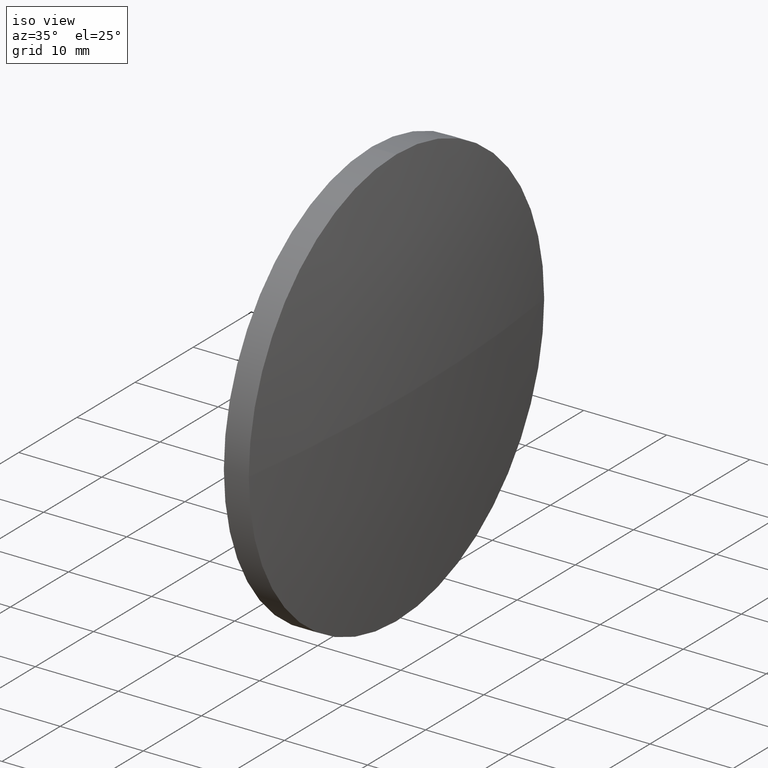
[diagram: clean part render]
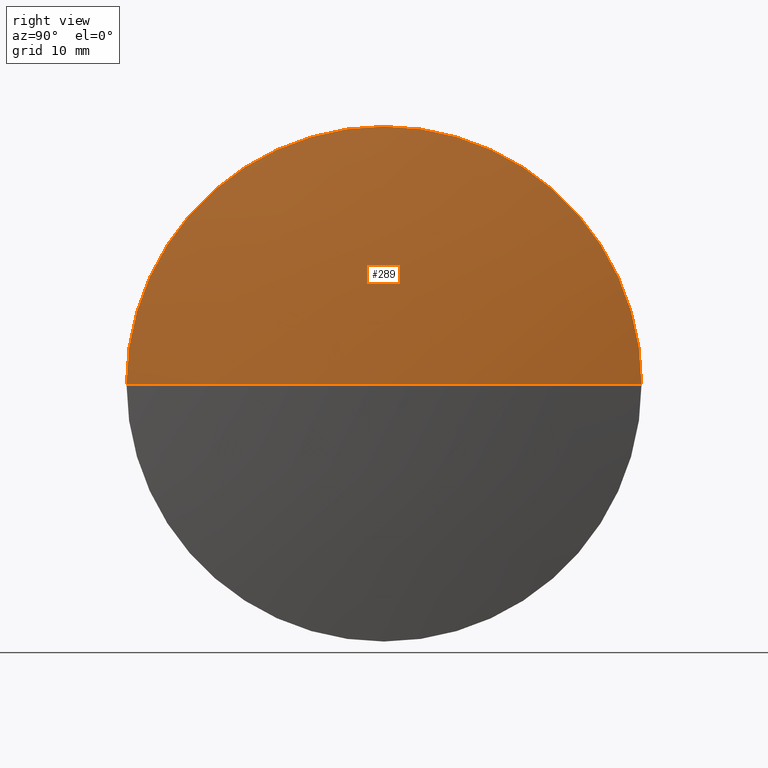
[diagram: tour spotlight — one face highlighted and labeled with its STEP entity id]
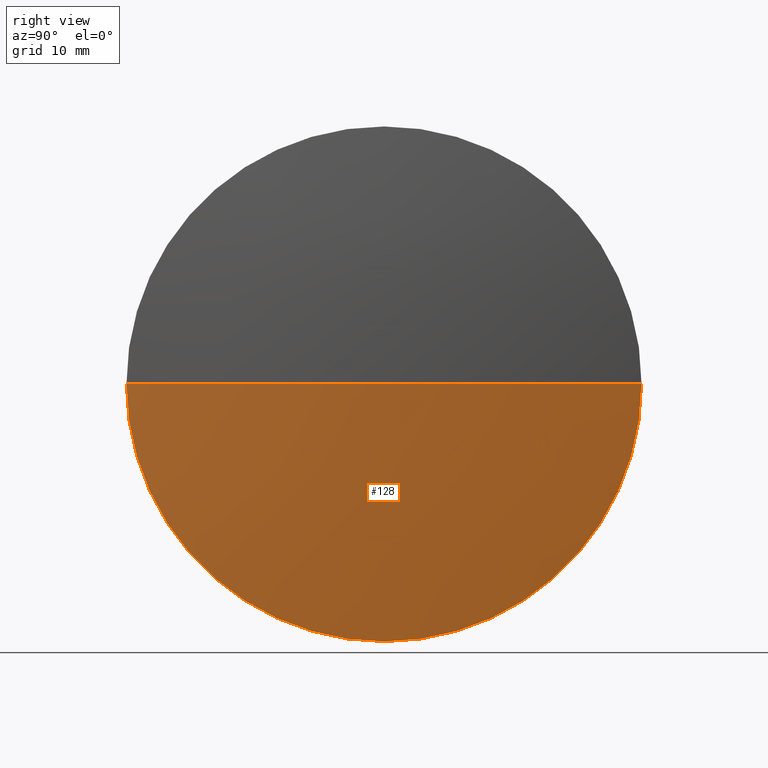
[diagram: tour spotlight — one face highlighted and labeled with its STEP entity id]
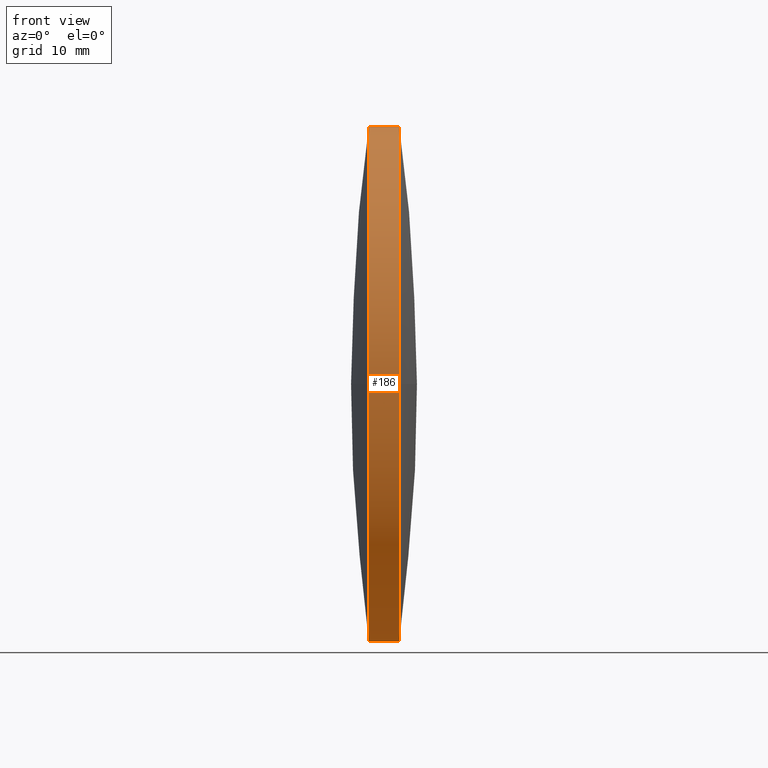
[diagram: tour spotlight — one face highlighted and labeled with its STEP entity id]
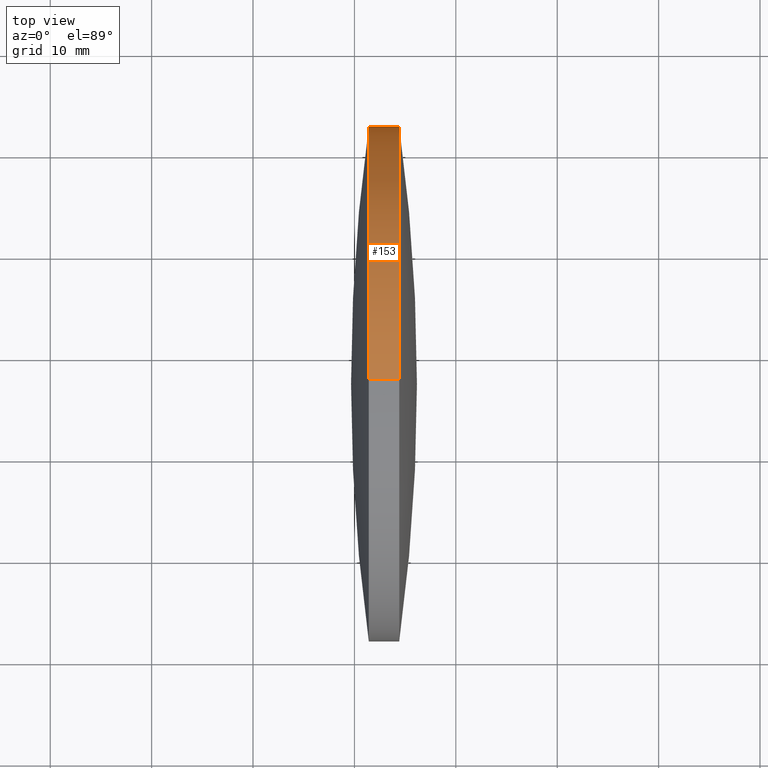
[diagram: tour spotlight — one face highlighted and labeled with its STEP entity id]
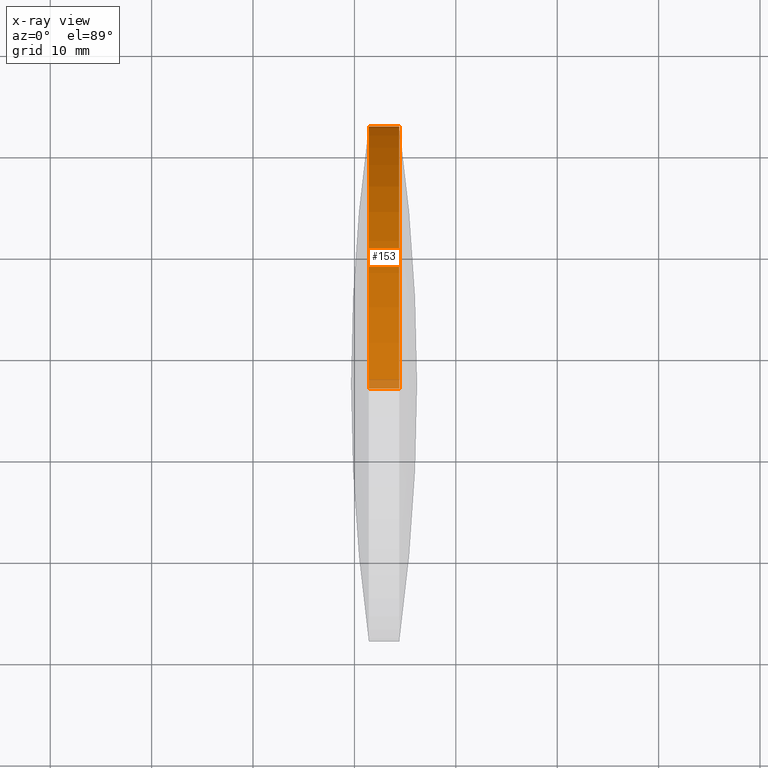
[diagram: x-ray of the same camera — body ghosted, this tour face saturated]
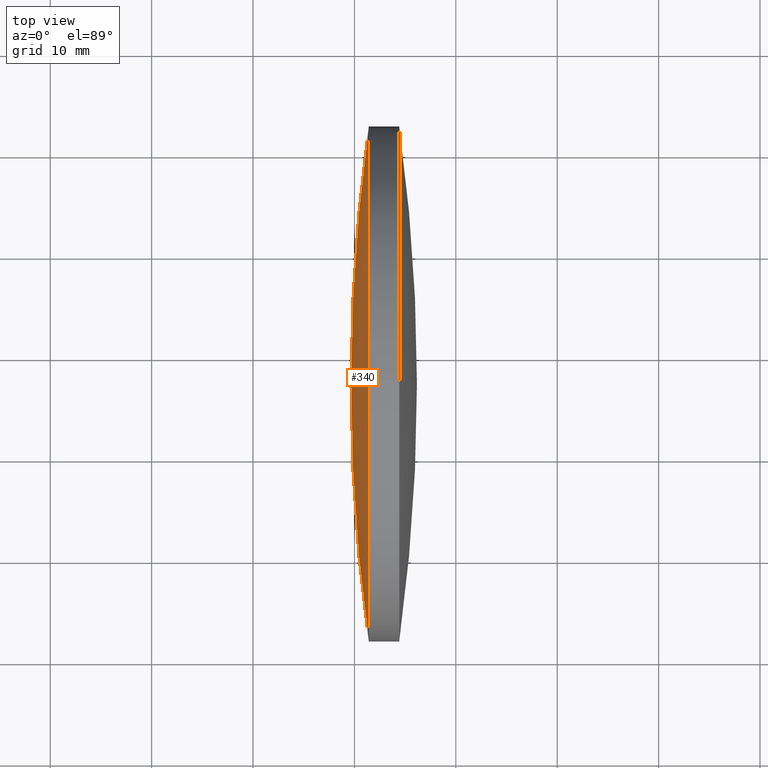
[diagram: tour spotlight — one face highlighted and labeled with its STEP entity id]
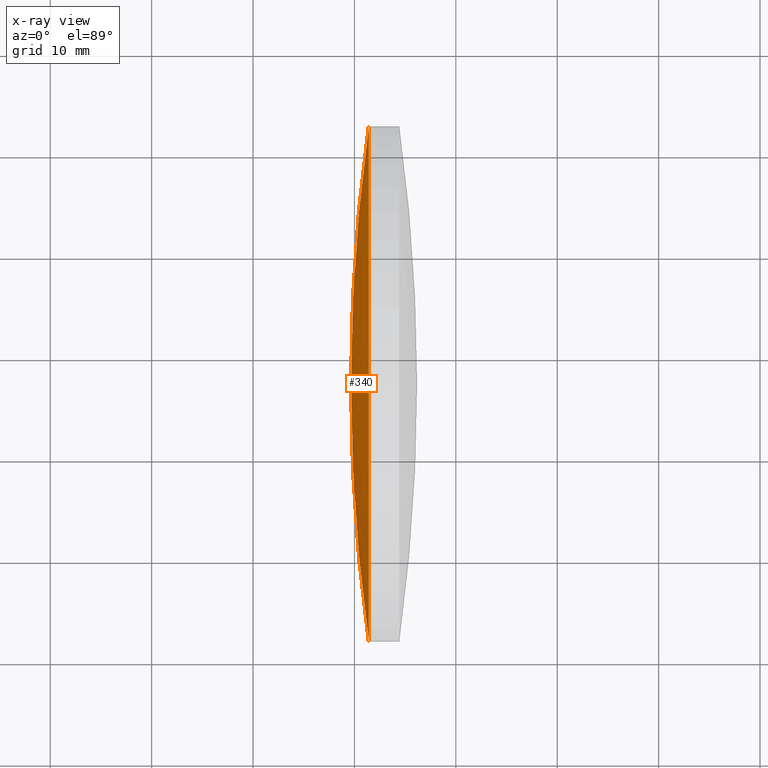
[diagram: x-ray of the same camera — body ghosted, this tour face saturated]
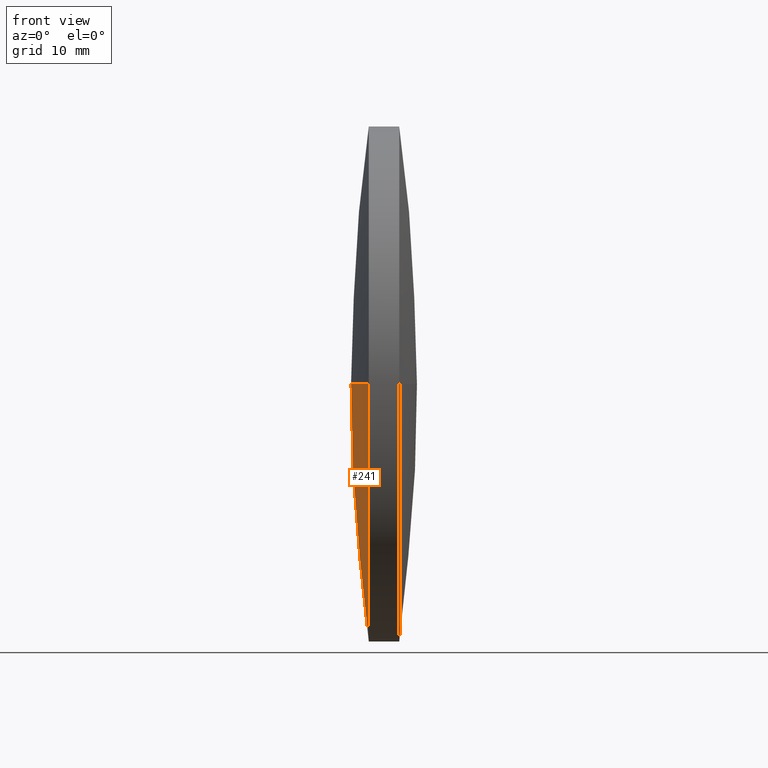
[diagram: tour spotlight — one face highlighted and labeled with its STEP entity id]
A machine part: a face-by-face anatomy tour. The part has 6 B-rep faces; the first image is the clean iso view, then the 6 largest visible faces are spotlighted one at a time (largest first), each with its STEP entity span.

Face 1 — right view, entity #289. In plain terms, the highlighted spherical surface has radius 185.208 mm.
Definition (entity closure, byte-faithful):
#7 = VERTEX_POINT ( 'NONE', #158 ) ;
#16 = EDGE_LOOP ( 'NONE', ( #266, #287, #306, #343 ) ) ;
#18 = DIRECTION ( 'NONE',  ( -1.000000000000000000, -0.0000000000000000000, -0.0000000000000000000 ) ) ;
#25 = VERTEX_POINT ( 'NONE', #268 ) ;
#27 = CARTESIAN_POINT ( 'NONE',  ( -9.041392636991657700, 97.23222604636865200, 0.0000000000000000000 ) ) ;
#28 = AXIS2_PLACEMENT_3D ( 'NONE', #27, #323, #114 ) ;
#29 = DIRECTION ( 'NONE',  ( 1.000000000000000000, 0.0000000000000000000, 0.0000000000000000000 ) ) ;
#43 = EDGE_CURVE ( 'NONE', #7, #174, #208, .T. ) ;
#48 = DIRECTION ( 'NONE',  ( 0.0000000000000000000, 0.0000000000000000000, 1.000000000000000000 ) ) ;
#55 = DIRECTION ( 'NONE',  ( -0.0000000000000000000, 0.0000000000000000000, -1.000000000000000000 ) ) ;
#56 = AXIS2_PLACEMENT_3D ( 'NONE', #242, #18, #48 ) ;
#59 = CARTESIAN_POINT ( 'NONE',  ( 174.4163664064679400, 97.23222604636956100, 0.0000000000000000000 ) ) ;
#84 = DIRECTION ( 'NONE',  ( 0.0000000000000000000, 0.0000000000000000000, 1.000000000000000000 ) ) ;
#114 = DIRECTION ( 'NONE',  ( 0.0000000000000000000, 1.000000000000000000, 1.224646799147353200E-016 ) ) ;
#132 = DIRECTION ( 'NONE',  ( -1.000000000000000000, -0.0000000000000000000, -0.0000000000000000000 ) ) ;
#149 = VERTEX_POINT ( 'NONE', #296 ) ;
#158 = CARTESIAN_POINT ( 'NONE',  ( 174.4163664064679400, 97.23222604636956100, 25.39999999999999100 ) ) ;
#161 = EDGE_CURVE ( 'NONE', #149, #25, #246, .T. ) ;
#174 = VERTEX_POINT ( 'NONE', #249 ) ;
#192 = AXIS2_PLACEMENT_3D ( 'NONE', #196, #194, #29 ) ;
#194 = DIRECTION ( 'NONE',  ( -0.0000000000000000000, 0.0000000000000000000, 1.000000000000000000 ) ) ;
#196 = CARTESIAN_POINT ( 'NONE',  ( -9.041392636991657700, 97.23222604636865200, 0.0000000000000000000 ) ) ;
#197 = CARTESIAN_POINT ( 'NONE',  ( -9.041392636991657700, 97.23222604636865200, 0.0000000000000000000 ) ) ;
#199 = EDGE_CURVE ( 'NONE', #149, #174, #251, .T. ) ;
#205 = AXIS2_PLACEMENT_3D ( 'NONE', #197, #55, #253 ) ;
#208 = CIRCLE ( 'NONE', #56, 25.39999999999999100 ) ;
#225 = EDGE_CURVE ( 'NONE', #25, #7, #256, .T. ) ;
#242 = CARTESIAN_POINT ( 'NONE',  ( 174.4163664064679400, 97.23222604636956100, 0.0000000000000000000 ) ) ;
#246 = CIRCLE ( 'NONE', #28, 185.2077464720309200 ) ;
#249 = CARTESIAN_POINT ( 'NONE',  ( 174.4163664064679400, 122.6322260463690800, 0.0000000000000000000 ) ) ;
#251 = CIRCLE ( 'NONE', #192, 185.2077464720309200 ) ;
#253 = DIRECTION ( 'NONE',  ( 0.0000000000000000000, 1.000000000000000000, 0.0000000000000000000 ) ) ;
#256 = CIRCLE ( 'NONE', #332, 25.39999999999999100 ) ;
#266 = ORIENTED_EDGE ( 'NONE', *, *, #161, .F. ) ;
#268 = CARTESIAN_POINT ( 'NONE',  ( 174.4163664064679400, 71.83222604636912900, -3.110602869834218900E-015 ) ) ;
#275 = SPHERICAL_SURFACE ( 'NONE', #205, 185.2077464720309200 ) ;
#287 = ORIENTED_EDGE ( 'NONE', *, *, #199, .T. ) ;
#289 = ADVANCED_FACE ( 'NONE', ( #337 ), #275, .T. ) ;
#296 = CARTESIAN_POINT ( 'NONE',  ( 176.1663538350392500, 97.23222604636866600, 0.0000000000000000000 ) ) ;
#306 = ORIENTED_EDGE ( 'NONE', *, *, #43, .F. ) ;
#323 = DIRECTION ( 'NONE',  ( 0.0000000000000000000, 1.224646799147353200E-016, -1.000000000000000000 ) ) ;
#332 = AXIS2_PLACEMENT_3D ( 'NONE', #59, #132, #84 ) ;
#337 = FACE_OUTER_BOUND ( 'NONE', #16, .T. ) ;
#343 = ORIENTED_EDGE ( 'NONE', *, *, #225, .F. ) ;

Face 2 — right view, entity #128. In plain terms, the highlighted spherical surface has radius 185.208 mm.
Definition (entity closure, byte-faithful):
#17 = EDGE_CURVE ( 'NONE', #218, #25, #307, .T. ) ;
#19 = FACE_OUTER_BOUND ( 'NONE', #284, .T. ) ;
#25 = VERTEX_POINT ( 'NONE', #268 ) ;
#27 = CARTESIAN_POINT ( 'NONE',  ( -9.041392636991657700, 97.23222604636865200, 0.0000000000000000000 ) ) ;
#28 = AXIS2_PLACEMENT_3D ( 'NONE', #27, #323, #114 ) ;
#29 = DIRECTION ( 'NONE',  ( 1.000000000000000000, 0.0000000000000000000, 0.0000000000000000000 ) ) ;
#42 = AXIS2_PLACEMENT_3D ( 'NONE', #217, #314, #319 ) ;
#58 = EDGE_CURVE ( 'NONE', #174, #218, #190, .T. ) ;
#71 = ORIENTED_EDGE ( 'NONE', *, *, #17, .F. ) ;
#105 = CARTESIAN_POINT ( 'NONE',  ( 174.4163664064679400, 97.23222604636956100, 0.0000000000000000000 ) ) ;
#110 = CARTESIAN_POINT ( 'NONE',  ( 174.4163664064679400, 97.23222604636956100, -25.39999999999999100 ) ) ;
#111 = DIRECTION ( 'NONE',  ( -0.0000000000000000000, 0.0000000000000000000, -1.000000000000000000 ) ) ;
#114 = DIRECTION ( 'NONE',  ( 0.0000000000000000000, 1.000000000000000000, 1.224646799147353200E-016 ) ) ;
#128 = ADVANCED_FACE ( 'NONE', ( #19 ), #342, .T. ) ;
#137 = AXIS2_PLACEMENT_3D ( 'NONE', #105, #345, #220 ) ;
#138 = DIRECTION ( 'NONE',  ( 0.0000000000000000000, 1.000000000000000000, 0.0000000000000000000 ) ) ;
#149 = VERTEX_POINT ( 'NONE', #296 ) ;
#161 = EDGE_CURVE ( 'NONE', #149, #25, #246, .T. ) ;
#174 = VERTEX_POINT ( 'NONE', #249 ) ;
#179 = ORIENTED_EDGE ( 'NONE', *, *, #199, .F. ) ;
#183 = AXIS2_PLACEMENT_3D ( 'NONE', #322, #111, #138 ) ;
#190 = CIRCLE ( 'NONE', #137, 25.39999999999999100 ) ;
#192 = AXIS2_PLACEMENT_3D ( 'NONE', #196, #194, #29 ) ;
#194 = DIRECTION ( 'NONE',  ( -0.0000000000000000000, 0.0000000000000000000, 1.000000000000000000 ) ) ;
#196 = CARTESIAN_POINT ( 'NONE',  ( -9.041392636991657700, 97.23222604636865200, 0.0000000000000000000 ) ) ;
#199 = EDGE_CURVE ( 'NONE', #149, #174, #251, .T. ) ;
#200 = ORIENTED_EDGE ( 'NONE', *, *, #58, .F. ) ;
#217 = CARTESIAN_POINT ( 'NONE',  ( 174.4163664064679400, 97.23222604636956100, 0.0000000000000000000 ) ) ;
#218 = VERTEX_POINT ( 'NONE', #110 ) ;
#220 = DIRECTION ( 'NONE',  ( 0.0000000000000000000, 0.0000000000000000000, 1.000000000000000000 ) ) ;
#229 = ORIENTED_EDGE ( 'NONE', *, *, #161, .T. ) ;
#246 = CIRCLE ( 'NONE', #28, 185.2077464720309200 ) ;
#249 = CARTESIAN_POINT ( 'NONE',  ( 174.4163664064679400, 122.6322260463690800, 0.0000000000000000000 ) ) ;
#251 = CIRCLE ( 'NONE', #192, 185.2077464720309200 ) ;
#268 = CARTESIAN_POINT ( 'NONE',  ( 174.4163664064679400, 71.83222604636912900, -3.110602869834218900E-015 ) ) ;
#284 = EDGE_LOOP ( 'NONE', ( #179, #229, #71, #200 ) ) ;
#296 = CARTESIAN_POINT ( 'NONE',  ( 176.1663538350392500, 97.23222604636866600, 0.0000000000000000000 ) ) ;
#307 = CIRCLE ( 'NONE', #42, 25.39999999999999100 ) ;
#314 = DIRECTION ( 'NONE',  ( -1.000000000000000000, -0.0000000000000000000, -0.0000000000000000000 ) ) ;
#319 = DIRECTION ( 'NONE',  ( 0.0000000000000000000, 0.0000000000000000000, 1.000000000000000000 ) ) ;
#322 = CARTESIAN_POINT ( 'NONE',  ( -9.041392636991657700, 97.23222604636865200, 0.0000000000000000000 ) ) ;
#323 = DIRECTION ( 'NONE',  ( 0.0000000000000000000, 1.224646799147353200E-016, -1.000000000000000000 ) ) ;
#342 = SPHERICAL_SURFACE ( 'NONE', #183, 185.2077464720309200 ) ;
#345 = DIRECTION ( 'NONE',  ( -1.000000000000000000, -0.0000000000000000000, -0.0000000000000000000 ) ) ;

Face 3 — front view, entity #186. In plain terms, the highlighted cylindrical surface (partial cylindrical patch) has radius 25.4 mm, axis along (-1, -0, -0).
Definition (entity closure, byte-faithful):
#2 = ORIENTED_EDGE ( 'NONE', *, *, #96, .F. ) ;
#6 = CARTESIAN_POINT ( 'NONE',  ( 171.4164086921822200, 97.23222604636956100, 25.39999999999999100 ) ) ;
#7 = VERTEX_POINT ( 'NONE', #158 ) ;
#17 = EDGE_CURVE ( 'NONE', #218, #25, #307, .T. ) ;
#21 = CARTESIAN_POINT ( 'NONE',  ( 171.4164086921822200, 97.23222604636956100, 0.0000000000000000000 ) ) ;
#23 = EDGE_CURVE ( 'NONE', #218, #281, #97, .T. ) ;
#24 = CYLINDRICAL_SURFACE ( 'NONE', #310, 25.39999999999999100 ) ;
#25 = VERTEX_POINT ( 'NONE', #268 ) ;
#30 = CARTESIAN_POINT ( 'NONE',  ( 171.4164086921822200, 71.83222604636944200, -3.110602869834257900E-015 ) ) ;
#31 = FACE_OUTER_BOUND ( 'NONE', #37, .T. ) ;
#37 = EDGE_LOOP ( 'NONE', ( #308, #66, #176, #52, #2, #191 ) ) ;
#42 = AXIS2_PLACEMENT_3D ( 'NONE', #217, #314, #319 ) ;
#51 = DIRECTION ( 'NONE',  ( -1.000000000000000000, -0.0000000000000000000, -0.0000000000000000000 ) ) ;
#52 = ORIENTED_EDGE ( 'NONE', *, *, #146, .T. ) ;
#59 = CARTESIAN_POINT ( 'NONE',  ( 174.4163664064679400, 97.23222604636956100, 0.0000000000000000000 ) ) ;
#64 = DIRECTION ( 'NONE',  ( -1.000000000000000000, -0.0000000000000000000, -0.0000000000000000000 ) ) ;
#66 = ORIENTED_EDGE ( 'NONE', *, *, #17, .T. ) ;
#68 = AXIS2_PLACEMENT_3D ( 'NONE', #21, #130, #78 ) ;
#73 = EDGE_CURVE ( 'NONE', #281, #182, #107, .T. ) ;
#78 = DIRECTION ( 'NONE',  ( 0.0000000000000000000, 0.0000000000000000000, 1.000000000000000000 ) ) ;
#84 = DIRECTION ( 'NONE',  ( 0.0000000000000000000, 0.0000000000000000000, 1.000000000000000000 ) ) ;
#86 = DIRECTION ( 'NONE',  ( 0.0000000000000000000, 0.0000000000000000000, 1.000000000000000000 ) ) ;
#96 = EDGE_CURVE ( 'NONE', #182, #151, #327, .T. ) ;
#97 = LINE ( 'NONE', #108, #259 ) ;
#101 = LINE ( 'NONE', #244, #312 ) ;
#107 = CIRCLE ( 'NONE', #68, 25.39999999999999100 ) ;
#108 = CARTESIAN_POINT ( 'NONE',  ( 165.7441079421506900, 97.23222604636956100, -25.39999999999999100 ) ) ;
#110 = CARTESIAN_POINT ( 'NONE',  ( 174.4163664064679400, 97.23222604636956100, -25.39999999999999100 ) ) ;
#130 = DIRECTION ( 'NONE',  ( -1.000000000000000000, -0.0000000000000000000, -0.0000000000000000000 ) ) ;
#132 = DIRECTION ( 'NONE',  ( -1.000000000000000000, -0.0000000000000000000, -0.0000000000000000000 ) ) ;
#146 = EDGE_CURVE ( 'NONE', #7, #151, #101, .T. ) ;
#151 = VERTEX_POINT ( 'NONE', #6 ) ;
#158 = CARTESIAN_POINT ( 'NONE',  ( 174.4163664064679400, 97.23222604636956100, 25.39999999999999100 ) ) ;
#166 = CARTESIAN_POINT ( 'NONE',  ( 171.4164086921822200, 97.23222604636956100, -25.39999999999999100 ) ) ;
#170 = DIRECTION ( 'NONE',  ( -1.000000000000000000, -0.0000000000000000000, -0.0000000000000000000 ) ) ;
#176 = ORIENTED_EDGE ( 'NONE', *, *, #225, .T. ) ;
#182 = VERTEX_POINT ( 'NONE', #30 ) ;
#186 = ADVANCED_FACE ( 'NONE', ( #31 ), #24, .T. ) ;
#191 = ORIENTED_EDGE ( 'NONE', *, *, #73, .F. ) ;
#212 = AXIS2_PLACEMENT_3D ( 'NONE', #224, #170, #86 ) ;
#217 = CARTESIAN_POINT ( 'NONE',  ( 174.4163664064679400, 97.23222604636956100, 0.0000000000000000000 ) ) ;
#218 = VERTEX_POINT ( 'NONE', #110 ) ;
#224 = CARTESIAN_POINT ( 'NONE',  ( 171.4164086921822200, 97.23222604636956100, 0.0000000000000000000 ) ) ;
#225 = EDGE_CURVE ( 'NONE', #25, #7, #256, .T. ) ;
#227 = DIRECTION ( 'NONE',  ( 0.0000000000000000000, 0.0000000000000000000, 1.000000000000000000 ) ) ;
#244 = CARTESIAN_POINT ( 'NONE',  ( 165.7441079421506900, 97.23222604636956100, 25.39999999999999100 ) ) ;
#256 = CIRCLE ( 'NONE', #332, 25.39999999999999100 ) ;
#259 = VECTOR ( 'NONE', #51, 1000.000000000000000 ) ;
#268 = CARTESIAN_POINT ( 'NONE',  ( 174.4163664064679400, 71.83222604636912900, -3.110602869834218900E-015 ) ) ;
#271 = CARTESIAN_POINT ( 'NONE',  ( 165.7441079421506900, 97.23222604636956100, 0.0000000000000000000 ) ) ;
#272 = DIRECTION ( 'NONE',  ( -1.000000000000000000, -0.0000000000000000000, -0.0000000000000000000 ) ) ;
#281 = VERTEX_POINT ( 'NONE', #166 ) ;
#307 = CIRCLE ( 'NONE', #42, 25.39999999999999100 ) ;
#308 = ORIENTED_EDGE ( 'NONE', *, *, #23, .F. ) ;
#310 = AXIS2_PLACEMENT_3D ( 'NONE', #271, #272, #227 ) ;
#312 = VECTOR ( 'NONE', #64, 1000.000000000000000 ) ;
#314 = DIRECTION ( 'NONE',  ( -1.000000000000000000, -0.0000000000000000000, -0.0000000000000000000 ) ) ;
#319 = DIRECTION ( 'NONE',  ( 0.0000000000000000000, 0.0000000000000000000, 1.000000000000000000 ) ) ;
#327 = CIRCLE ( 'NONE', #212, 25.39999999999999100 ) ;
#332 = AXIS2_PLACEMENT_3D ( 'NONE', #59, #132, #84 ) ;

Face 4 — top view, entity #153. An x-ray twin of the same camera follows (body ghosted, this face saturated) — the face is partly hidden behind the body. In plain terms, the highlighted cylindrical surface (partial cylindrical patch) has radius 25.4 mm, axis along (-1, -0, -0).
Definition (entity closure, byte-faithful):
#6 = CARTESIAN_POINT ( 'NONE',  ( 171.4164086921822200, 97.23222604636956100, 25.39999999999999100 ) ) ;
#7 = VERTEX_POINT ( 'NONE', #158 ) ;
#18 = DIRECTION ( 'NONE',  ( -1.000000000000000000, -0.0000000000000000000, -0.0000000000000000000 ) ) ;
#20 = VERTEX_POINT ( 'NONE', #54 ) ;
#23 = EDGE_CURVE ( 'NONE', #218, #281, #97, .T. ) ;
#35 = AXIS2_PLACEMENT_3D ( 'NONE', #317, #254, #324 ) ;
#43 = EDGE_CURVE ( 'NONE', #7, #174, #208, .T. ) ;
#47 = ORIENTED_EDGE ( 'NONE', *, *, #69, .F. ) ;
#48 = DIRECTION ( 'NONE',  ( 0.0000000000000000000, 0.0000000000000000000, 1.000000000000000000 ) ) ;
#49 = CARTESIAN_POINT ( 'NONE',  ( 171.4164086921822200, 97.23222604636956100, 0.0000000000000000000 ) ) ;
#51 = DIRECTION ( 'NONE',  ( -1.000000000000000000, -0.0000000000000000000, -0.0000000000000000000 ) ) ;
#54 = CARTESIAN_POINT ( 'NONE',  ( 171.4164086921822200, 122.6322260463694100, 0.0000000000000000000 ) ) ;
#56 = AXIS2_PLACEMENT_3D ( 'NONE', #242, #18, #48 ) ;
#58 = EDGE_CURVE ( 'NONE', #174, #218, #190, .T. ) ;
#64 = DIRECTION ( 'NONE',  ( -1.000000000000000000, -0.0000000000000000000, -0.0000000000000000000 ) ) ;
#69 = EDGE_CURVE ( 'NONE', #151, #20, #102, .T. ) ;
#74 = CARTESIAN_POINT ( 'NONE',  ( 171.4164086921822200, 97.23222604636956100, 0.0000000000000000000 ) ) ;
#77 = DIRECTION ( 'NONE',  ( -1.000000000000000000, -0.0000000000000000000, -0.0000000000000000000 ) ) ;
#79 = EDGE_CURVE ( 'NONE', #20, #281, #118, .T. ) ;
#97 = LINE ( 'NONE', #108, #259 ) ;
#98 = ORIENTED_EDGE ( 'NONE', *, *, #43, .T. ) ;
#101 = LINE ( 'NONE', #244, #312 ) ;
#102 = CIRCLE ( 'NONE', #240, 25.39999999999999100 ) ;
#104 = DIRECTION ( 'NONE',  ( -1.000000000000000000, -0.0000000000000000000, -0.0000000000000000000 ) ) ;
#105 = CARTESIAN_POINT ( 'NONE',  ( 174.4163664064679400, 97.23222604636956100, 0.0000000000000000000 ) ) ;
#108 = CARTESIAN_POINT ( 'NONE',  ( 165.7441079421506900, 97.23222604636956100, -25.39999999999999100 ) ) ;
#110 = CARTESIAN_POINT ( 'NONE',  ( 174.4163664064679400, 97.23222604636956100, -25.39999999999999100 ) ) ;
#118 = CIRCLE ( 'NONE', #125, 25.39999999999999100 ) ;
#120 = ORIENTED_EDGE ( 'NONE', *, *, #146, .F. ) ;
#125 = AXIS2_PLACEMENT_3D ( 'NONE', #49, #77, #265 ) ;
#137 = AXIS2_PLACEMENT_3D ( 'NONE', #105, #345, #220 ) ;
#146 = EDGE_CURVE ( 'NONE', #7, #151, #101, .T. ) ;
#151 = VERTEX_POINT ( 'NONE', #6 ) ;
#153 = ADVANCED_FACE ( 'NONE', ( #318 ), #290, .T. ) ;
#158 = CARTESIAN_POINT ( 'NONE',  ( 174.4163664064679400, 97.23222604636956100, 25.39999999999999100 ) ) ;
#166 = CARTESIAN_POINT ( 'NONE',  ( 171.4164086921822200, 97.23222604636956100, -25.39999999999999100 ) ) ;
#168 = EDGE_LOOP ( 'NONE', ( #298, #195, #328, #47, #120, #98 ) ) ;
#174 = VERTEX_POINT ( 'NONE', #249 ) ;
#189 = DIRECTION ( 'NONE',  ( 0.0000000000000000000, 0.0000000000000000000, 1.000000000000000000 ) ) ;
#190 = CIRCLE ( 'NONE', #137, 25.39999999999999100 ) ;
#195 = ORIENTED_EDGE ( 'NONE', *, *, #23, .T. ) ;
#208 = CIRCLE ( 'NONE', #56, 25.39999999999999100 ) ;
#218 = VERTEX_POINT ( 'NONE', #110 ) ;
#220 = DIRECTION ( 'NONE',  ( 0.0000000000000000000, 0.0000000000000000000, 1.000000000000000000 ) ) ;
#240 = AXIS2_PLACEMENT_3D ( 'NONE', #74, #104, #189 ) ;
#242 = CARTESIAN_POINT ( 'NONE',  ( 174.4163664064679400, 97.23222604636956100, 0.0000000000000000000 ) ) ;
#244 = CARTESIAN_POINT ( 'NONE',  ( 165.7441079421506900, 97.23222604636956100, 25.39999999999999100 ) ) ;
#249 = CARTESIAN_POINT ( 'NONE',  ( 174.4163664064679400, 122.6322260463690800, 0.0000000000000000000 ) ) ;
#254 = DIRECTION ( 'NONE',  ( -1.000000000000000000, -0.0000000000000000000, -0.0000000000000000000 ) ) ;
#259 = VECTOR ( 'NONE', #51, 1000.000000000000000 ) ;
#265 = DIRECTION ( 'NONE',  ( 0.0000000000000000000, 0.0000000000000000000, 1.000000000000000000 ) ) ;
#281 = VERTEX_POINT ( 'NONE', #166 ) ;
#290 = CYLINDRICAL_SURFACE ( 'NONE', #35, 25.39999999999999100 ) ;
#298 = ORIENTED_EDGE ( 'NONE', *, *, #58, .T. ) ;
#312 = VECTOR ( 'NONE', #64, 1000.000000000000000 ) ;
#317 = CARTESIAN_POINT ( 'NONE',  ( 165.7441079421506900, 97.23222604636956100, 0.0000000000000000000 ) ) ;
#318 = FACE_OUTER_BOUND ( 'NONE', #168, .T. ) ;
#324 = DIRECTION ( 'NONE',  ( 0.0000000000000000000, 0.0000000000000000000, 1.000000000000000000 ) ) ;
#328 = ORIENTED_EDGE ( 'NONE', *, *, #79, .F. ) ;
#345 = DIRECTION ( 'NONE',  ( -1.000000000000000000, -0.0000000000000000000, -0.0000000000000000000 ) ) ;

Face 5 — top view, entity #340. An x-ray twin of the same camera follows (body ghosted, this face saturated) — the face is partly hidden behind the body. In plain terms, the highlighted spherical surface has radius 185.208 mm.
Definition (entity closure, byte-faithful):
#4 = CARTESIAN_POINT ( 'NONE',  ( 354.8741677356362100, 97.23222604636927700, 0.0000000000000000000 ) ) ;
#6 = CARTESIAN_POINT ( 'NONE',  ( 171.4164086921822200, 97.23222604636956100, 25.39999999999999100 ) ) ;
#14 = ORIENTED_EDGE ( 'NONE', *, *, #279, .T. ) ;
#20 = VERTEX_POINT ( 'NONE', #54 ) ;
#30 = CARTESIAN_POINT ( 'NONE',  ( 171.4164086921822200, 71.83222604636944200, -3.110602869834257900E-015 ) ) ;
#32 = ORIENTED_EDGE ( 'NONE', *, *, #126, .F. ) ;
#33 = CARTESIAN_POINT ( 'NONE',  ( 354.8741677356362100, 97.23222604636927700, 0.0000000000000000000 ) ) ;
#34 = DIRECTION ( 'NONE',  ( -0.0000000000000000000, 0.0000000000000000000, -1.000000000000000000 ) ) ;
#38 = ORIENTED_EDGE ( 'NONE', *, *, #69, .T. ) ;
#46 = CIRCLE ( 'NONE', #248, 185.2077464720253200 ) ;
#54 = CARTESIAN_POINT ( 'NONE',  ( 171.4164086921822200, 122.6322260463694100, 0.0000000000000000000 ) ) ;
#57 = ORIENTED_EDGE ( 'NONE', *, *, #96, .T. ) ;
#60 = DIRECTION ( 'NONE',  ( 1.000000000000000000, 0.0000000000000000000, 0.0000000000000000000 ) ) ;
#69 = EDGE_CURVE ( 'NONE', #151, #20, #102, .T. ) ;
#74 = CARTESIAN_POINT ( 'NONE',  ( 171.4164086921822200, 97.23222604636956100, 0.0000000000000000000 ) ) ;
#86 = DIRECTION ( 'NONE',  ( 0.0000000000000000000, 0.0000000000000000000, 1.000000000000000000 ) ) ;
#89 = DIRECTION ( 'NONE',  ( 0.0000000000000000000, 1.000000000000000000, 0.0000000000000000000 ) ) ;
#96 = EDGE_CURVE ( 'NONE', #182, #151, #327, .T. ) ;
#102 = CIRCLE ( 'NONE', #240, 25.39999999999999100 ) ;
#104 = DIRECTION ( 'NONE',  ( -1.000000000000000000, -0.0000000000000000000, -0.0000000000000000000 ) ) ;
#126 = EDGE_CURVE ( 'NONE', #182, #202, #46, .T. ) ;
#133 = DIRECTION ( 'NONE',  ( 0.0000000000000000000, 1.000000000000000000, 1.224646799147353500E-016 ) ) ;
#134 = DIRECTION ( 'NONE',  ( 0.0000000000000000000, 1.224646799147353200E-016, -1.000000000000000000 ) ) ;
#151 = VERTEX_POINT ( 'NONE', #6 ) ;
#167 = CIRCLE ( 'NONE', #226, 185.2077464720253200 ) ;
#170 = DIRECTION ( 'NONE',  ( -1.000000000000000000, -0.0000000000000000000, -0.0000000000000000000 ) ) ;
#182 = VERTEX_POINT ( 'NONE', #30 ) ;
#189 = DIRECTION ( 'NONE',  ( 0.0000000000000000000, 0.0000000000000000000, 1.000000000000000000 ) ) ;
#202 = VERTEX_POINT ( 'NONE', #273 ) ;
#210 = FACE_OUTER_BOUND ( 'NONE', #267, .T. ) ;
#212 = AXIS2_PLACEMENT_3D ( 'NONE', #224, #170, #86 ) ;
#224 = CARTESIAN_POINT ( 'NONE',  ( 171.4164086921822200, 97.23222604636956100, 0.0000000000000000000 ) ) ;
#226 = AXIS2_PLACEMENT_3D ( 'NONE', #33, #228, #60 ) ;
#228 = DIRECTION ( 'NONE',  ( -0.0000000000000000000, 0.0000000000000000000, 1.000000000000000000 ) ) ;
#236 = AXIS2_PLACEMENT_3D ( 'NONE', #270, #34, #89 ) ;
#240 = AXIS2_PLACEMENT_3D ( 'NONE', #74, #104, #189 ) ;
#248 = AXIS2_PLACEMENT_3D ( 'NONE', #4, #134, #133 ) ;
#267 = EDGE_LOOP ( 'NONE', ( #32, #57, #38, #14 ) ) ;
#270 = CARTESIAN_POINT ( 'NONE',  ( 354.8741677356362100, 97.23222604636927700, 0.0000000000000000000 ) ) ;
#273 = CARTESIAN_POINT ( 'NONE',  ( 169.6664212636108300, 97.23222604636929100, 0.0000000000000000000 ) ) ;
#279 = EDGE_CURVE ( 'NONE', #20, #202, #167, .T. ) ;
#327 = CIRCLE ( 'NONE', #212, 25.39999999999999100 ) ;
#334 = SPHERICAL_SURFACE ( 'NONE', #236, 185.2077464720253500 ) ;
#340 = ADVANCED_FACE ( 'NONE', ( #210 ), #334, .T. ) ;

Face 6 — front view, entity #241. In plain terms, the highlighted spherical surface has radius 185.208 mm.
Definition (entity closure, byte-faithful):
#4 = CARTESIAN_POINT ( 'NONE',  ( 354.8741677356362100, 97.23222604636927700, 0.0000000000000000000 ) ) ;
#20 = VERTEX_POINT ( 'NONE', #54 ) ;
#21 = CARTESIAN_POINT ( 'NONE',  ( 171.4164086921822200, 97.23222604636956100, 0.0000000000000000000 ) ) ;
#30 = CARTESIAN_POINT ( 'NONE',  ( 171.4164086921822200, 71.83222604636944200, -3.110602869834257900E-015 ) ) ;
#33 = CARTESIAN_POINT ( 'NONE',  ( 354.8741677356362100, 97.23222604636927700, 0.0000000000000000000 ) ) ;
#46 = CIRCLE ( 'NONE', #248, 185.2077464720253200 ) ;
#49 = CARTESIAN_POINT ( 'NONE',  ( 171.4164086921822200, 97.23222604636956100, 0.0000000000000000000 ) ) ;
#54 = CARTESIAN_POINT ( 'NONE',  ( 171.4164086921822200, 122.6322260463694100, 0.0000000000000000000 ) ) ;
#60 = DIRECTION ( 'NONE',  ( 1.000000000000000000, 0.0000000000000000000, 0.0000000000000000000 ) ) ;
#68 = AXIS2_PLACEMENT_3D ( 'NONE', #21, #130, #78 ) ;
#73 = EDGE_CURVE ( 'NONE', #281, #182, #107, .T. ) ;
#76 = FACE_OUTER_BOUND ( 'NONE', #260, .T. ) ;
#77 = DIRECTION ( 'NONE',  ( -1.000000000000000000, -0.0000000000000000000, -0.0000000000000000000 ) ) ;
#78 = DIRECTION ( 'NONE',  ( 0.0000000000000000000, 0.0000000000000000000, 1.000000000000000000 ) ) ;
#79 = EDGE_CURVE ( 'NONE', #20, #281, #118, .T. ) ;
#85 = DIRECTION ( 'NONE',  ( -0.0000000000000000000, 0.0000000000000000000, -1.000000000000000000 ) ) ;
#107 = CIRCLE ( 'NONE', #68, 25.39999999999999100 ) ;
#112 = ORIENTED_EDGE ( 'NONE', *, *, #126, .T. ) ;
#113 = DIRECTION ( 'NONE',  ( 0.0000000000000000000, 1.000000000000000000, 0.0000000000000000000 ) ) ;
#118 = CIRCLE ( 'NONE', #125, 25.39999999999999100 ) ;
#125 = AXIS2_PLACEMENT_3D ( 'NONE', #49, #77, #265 ) ;
#126 = EDGE_CURVE ( 'NONE', #182, #202, #46, .T. ) ;
#130 = DIRECTION ( 'NONE',  ( -1.000000000000000000, -0.0000000000000000000, -0.0000000000000000000 ) ) ;
#133 = DIRECTION ( 'NONE',  ( 0.0000000000000000000, 1.000000000000000000, 1.224646799147353500E-016 ) ) ;
#134 = DIRECTION ( 'NONE',  ( 0.0000000000000000000, 1.224646799147353200E-016, -1.000000000000000000 ) ) ;
#139 = ORIENTED_EDGE ( 'NONE', *, *, #79, .T. ) ;
#141 = ORIENTED_EDGE ( 'NONE', *, *, #279, .F. ) ;
#163 = ORIENTED_EDGE ( 'NONE', *, *, #73, .T. ) ;
#166 = CARTESIAN_POINT ( 'NONE',  ( 171.4164086921822200, 97.23222604636956100, -25.39999999999999100 ) ) ;
#167 = CIRCLE ( 'NONE', #226, 185.2077464720253200 ) ;
#182 = VERTEX_POINT ( 'NONE', #30 ) ;
#202 = VERTEX_POINT ( 'NONE', #273 ) ;
#222 = CARTESIAN_POINT ( 'NONE',  ( 354.8741677356362100, 97.23222604636927700, 0.0000000000000000000 ) ) ;
#226 = AXIS2_PLACEMENT_3D ( 'NONE', #33, #228, #60 ) ;
#228 = DIRECTION ( 'NONE',  ( -0.0000000000000000000, 0.0000000000000000000, 1.000000000000000000 ) ) ;
#241 = ADVANCED_FACE ( 'NONE', ( #76 ), #338, .T. ) ;
#248 = AXIS2_PLACEMENT_3D ( 'NONE', #4, #134, #133 ) ;
#260 = EDGE_LOOP ( 'NONE', ( #139, #163, #112, #141 ) ) ;
#265 = DIRECTION ( 'NONE',  ( 0.0000000000000000000, 0.0000000000000000000, 1.000000000000000000 ) ) ;
#273 = CARTESIAN_POINT ( 'NONE',  ( 169.6664212636108300, 97.23222604636929100, 0.0000000000000000000 ) ) ;
#279 = EDGE_CURVE ( 'NONE', #20, #202, #167, .T. ) ;
#281 = VERTEX_POINT ( 'NONE', #166 ) ;
#283 = AXIS2_PLACEMENT_3D ( 'NONE', #222, #85, #113 ) ;
#338 = SPHERICAL_SURFACE ( 'NONE', #283, 185.2077464720253500 ) ;